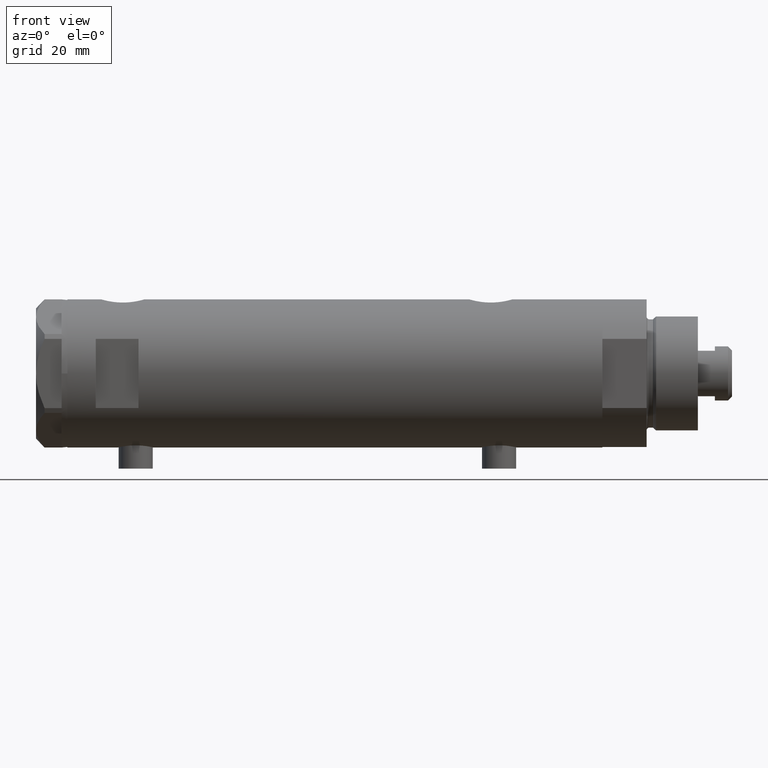
[diagram: clean part render]
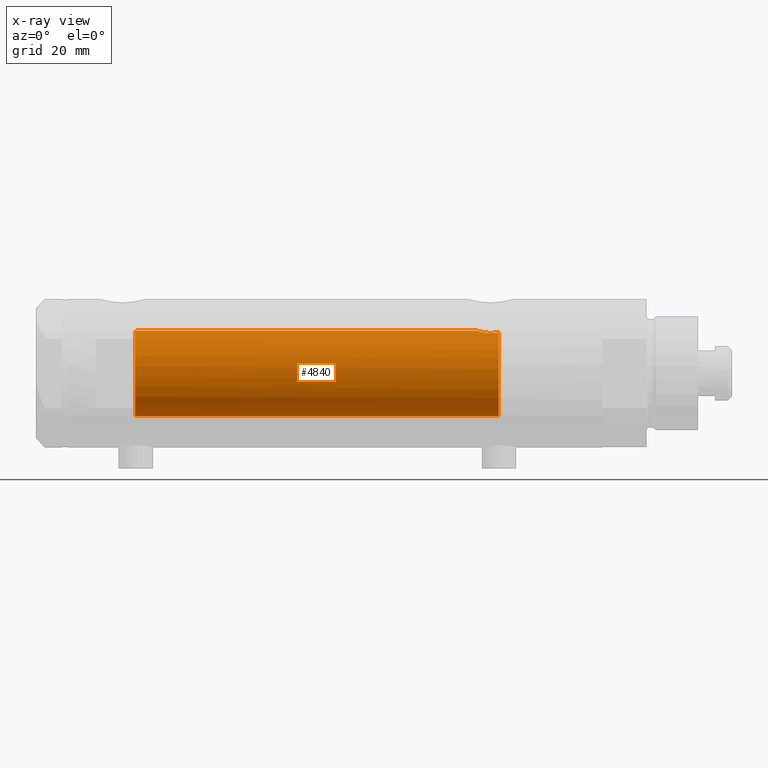
[diagram: x-ray — body ghosted, one internal face saturated and labeled with its STEP entity id]
A machine part, front view, then the same camera in x-ray: the body is ghosted and one INTERNAL B-rep face — a face not visible from any outside direction — is saturated and labeled: STEP entity #4840.
In plain terms, the highlighted cylindrical surface (partial cylindrical patch) has radius 15 mm, axis along (1, 0, -0).
Its self-contained STEP definition (entity closure, byte-faithful):
#52 = VERTEX_POINT ( 'NONE', #1242 ) ;
#87 = CARTESIAN_POINT ( 'NONE',  ( 14.85289483991917692, -2.102865829523694607, 70.05860377881609224 ) ) ;
#136 = CARTESIAN_POINT ( 'NONE',  ( 14.92029983160078643, -1.555365312915180542, 69.83609703141415537 ) ) ;
#182 = CARTESIAN_POINT ( 'NONE',  ( 14.97537530859971966, -0.8874117095427771496, -49.96137464055829014 ) ) ;
#226 = CARTESIAN_POINT ( 'NONE',  ( 14.96064712090283777, -1.106639041422191827, -50.00738179736369915 ) ) ;
#255 = CARTESIAN_POINT ( 'NONE',  ( 14.23984499268011028, -4.714778477509579346, -53.53008258614766390 ) ) ;
#339 = FACE_OUTER_BOUND ( 'NONE', #2735, .T. ) ;
#386 = DIRECTION ( 'NONE',  ( -0.000000000000000000, -0.000000000000000000, -1.000000000000000000 ) ) ;
#405 = VERTEX_POINT ( 'NONE', #2819 ) ;
#502 = EDGE_CURVE ( 'NONE', #1297, #857, #3996, .T. ) ;
#509 = CARTESIAN_POINT ( 'NONE',  ( 15.00000000000000000, 0.000000000000000000, 69.58500000000000796 ) ) ;
#556 = CARTESIAN_POINT ( 'NONE',  ( 14.81710879718117546, -2.343063746046468054, -50.48067662538952050 ) ) ;
#563 = EDGE_CURVE ( 'NONE', #405, #1461, #3531, .T. ) ;
#728 = DIRECTION ( 'NONE',  ( -0.000000000000000000, -0.000000000000000000, -1.000000000000000000 ) ) ;
#731 = LINE ( 'NONE', #759, #892 ) ;
#759 = CARTESIAN_POINT ( 'NONE',  ( -15.00000000000000000, 0.000000000000000000, 93.95000000000001705 ) ) ;
#769 = ORIENTED_EDGE ( 'NONE', *, *, #3723, .F. ) ;
#774 = CARTESIAN_POINT ( 'NONE',  ( -15.00000000000000000, 0.000000000000000000, -57.55000000000000426 ) ) ;
#857 = VERTEX_POINT ( 'NONE', #1972 ) ;
#892 = VECTOR ( 'NONE', #2154, 1000.000000000000000 ) ;
#917 = CARTESIAN_POINT ( 'NONE',  ( 14.42796883436190214, -4.108435602805831088, -52.10726922759030799 ) ) ;
#966 = CARTESIAN_POINT ( 'NONE',  ( 14.18786347641749757, -4.868757996482117711, -54.63322300400292875 ) ) ;
#994 = CARTESIAN_POINT ( 'NONE',  ( 15.00000000000000000, -0.2216692655473431750, -49.88499999999999091 ) ) ;
#1016 = CARTESIAN_POINT ( 'NONE',  ( 14.30772250772359833, -4.505024017690383076, -52.90010806953220879 ) ) ;
#1168 = DIRECTION ( 'NONE',  ( 0.000000000000000000, 0.000000000000000000, 1.000000000000000000 ) ) ;
#1242 = CARTESIAN_POINT ( 'NONE',  ( 15.00000000000000000, 5.959273468635536151E-16, -49.88499999999999801 ) ) ;
#1297 = VERTEX_POINT ( 'NONE', #2085 ) ;
#1329 = CARTESIAN_POINT ( 'NONE',  ( 14.64727859494137263, -3.248701865452407578, -51.10174013696655493 ) ) ;
#1386 = LINE ( 'NONE', #3615, #3782 ) ;
#1461 = VERTEX_POINT ( 'NONE', #774 ) ;
#1469 = DIRECTION ( 'NONE',  ( 1.000000000000000000, 0.000000000000000000, 0.000000000000000000 ) ) ;
#1476 = ORIENTED_EDGE ( 'NONE', *, *, #502, .F. ) ;
#1490 = CARTESIAN_POINT ( 'NONE',  ( 0.000000000000000000, 0.000000000000000000, 70.15000000000000568 ) ) ;
#1517 = CIRCLE ( 'NONE', #2994, 15.00000000000000000 ) ;
#1580 = CARTESIAN_POINT ( 'NONE',  ( 0.000000000000000000, 0.000000000000000000, -57.55000000000000426 ) ) ;
#1670 = CARTESIAN_POINT ( 'NONE',  ( 14.99508877558421993, -0.4434836953032583184, -49.90007684727662252 ) ) ;
#1739 = CARTESIAN_POINT ( 'NONE',  ( 14.42775250319760083, -4.105775281508734054, -57.36911445102909113 ) ) ;
#1765 = CARTESIAN_POINT ( 'NONE',  ( 14.20819413761015504, -4.809312895991456394, -55.51713251522167525 ) ) ;
#1821 = CARTESIAN_POINT ( 'NONE',  ( 0.000000000000000000, 0.000000000000000000, 93.95000000000001705 ) ) ;
#1835 = EDGE_CURVE ( 'NONE', #1297, #52, #1386, .T. ) ;
#1940 = CARTESIAN_POINT ( 'NONE',  ( 14.82638779339053947, -2.275571356824482638, 70.15000000000000568 ) ) ;
#1972 = CARTESIAN_POINT ( 'NONE',  ( 14.82638779339053947, -2.275571356824482638, 70.15000000000000568 ) ) ;
#2085 = CARTESIAN_POINT ( 'NONE',  ( 15.00000000000000000, 0.000000000000000000, 69.58500000000000796 ) ) ;
#2094 = CARTESIAN_POINT ( 'NONE',  ( 14.46277203719950855, -3.978470183374506863, -57.55000000000000426 ) ) ;
#2126 = CARTESIAN_POINT ( 'NONE',  ( 14.84733308118440220, -2.144376633039216440, -50.37751912952715116 ) ) ;
#2147 = ORIENTED_EDGE ( 'NONE', *, *, #563, .T. ) ;
#2154 = DIRECTION ( 'NONE',  ( -0.000000000000000000, -0.000000000000000000, -1.000000000000000000 ) ) ;
#2278 = CARTESIAN_POINT ( 'NONE',  ( 15.00000000000000178, -0.3999014018875933218, 69.58499999999999375 ) ) ;
#2401 = CARTESIAN_POINT ( 'NONE',  ( 14.72015646623405871, -2.909233045280601893, -50.82572079632731743 ) ) ;
#2417 = B_SPLINE_CURVE_WITH_KNOTS ( 'NONE', 3,
 ( #2094, #1739, #4762, #3912, #2845, #4790, #4305, #1765, #2867, #3214, #966, #4360, #4709, #255, #2772, #1016, #4328, #917, #2496, #1329, #2401, #556, #2126, #3592, #3266, #226, #182, #1670, #994, #3173 ),
 .UNSPECIFIED., .F., .F.,
 ( 4, 2, 2, 2, 2, 2, 2, 2, 2, 2, 2, 2, 2, 2, 4 ),
 ( 0.004672505804584289359, 0.005337629501999303222, 0.006002753199414317953, 0.006667876896829330949, 0.007333000594244345680, 0.007998124291659358676, 0.008663247989074373406, 0.009328371686489388137, 0.009993495383904402868, 0.01132374277873441151, 0.01265399017356442016, 0.01331911387097942448, 0.01398423756839442880, 0.01464936126580943312, 0.01531448496322443745 ),
 .UNSPECIFIED. ) ;
#2457 = ORIENTED_EDGE ( 'NONE', *, *, #2646, .T. ) ;
#2496 = CARTESIAN_POINT ( 'NONE',  ( 14.49994286062941562, -3.853373987417223479, -51.74743896782911889 ) ) ;
#2617 = AXIS2_PLACEMENT_3D ( 'NONE', #1821, #386, #3292 ) ;
#2646 = EDGE_CURVE ( 'NONE', #4057, #857, #1517, .T. ) ;
#2698 = CARTESIAN_POINT ( 'NONE',  ( 14.98404828787190901, -0.7909490205761857684, 69.63356230794191504 ) ) ;
#2735 = EDGE_LOOP ( 'NONE', ( #1476, #3457, #769, #2147, #3759, #2457 ) ) ;
#2772 = CARTESIAN_POINT ( 'NONE',  ( 14.25977760983849052, -4.654557688538888627, -53.31736805897653397 ) ) ;
#2819 = CARTESIAN_POINT ( 'NONE',  ( 14.46277203719950855, -3.978470183374506863, -57.55000000000000426 ) ) ;
#2845 = CARTESIAN_POINT ( 'NONE',  ( 14.30602371879161439, -4.510400617436904014, -56.58665028800271557 ) ) ;
#2867 = CARTESIAN_POINT ( 'NONE',  ( 14.19797987272029438, -4.839174951492910104, -55.29741451501411831 ) ) ;
#2994 = AXIS2_PLACEMENT_3D ( 'NONE', #1490, #1168, #1469 ) ;
#3072 = DIRECTION ( 'NONE',  ( -1.000000000000000000, 0.000000000000000000, 0.000000000000000000 ) ) ;
#3173 = CARTESIAN_POINT ( 'NONE',  ( 15.00000000000000000, 5.959273468635536151E-16, -49.88499999999999801 ) ) ;
#3214 = CARTESIAN_POINT ( 'NONE',  ( 14.18781489734108270, -4.868896704194245473, -54.85545969036063241 ) ) ;
#3266 = CARTESIAN_POINT ( 'NONE',  ( 14.92307637240703677, -1.532123959568890026, -50.12726557582075770 ) ) ;
#3292 = DIRECTION ( 'NONE',  ( -1.000000000000000000, 0.000000000000000000, 0.000000000000000000 ) ) ;
#3395 = DIRECTION ( 'NONE',  ( 0.000000000000000000, 0.000000000000000000, -1.000000000000000000 ) ) ;
#3457 = ORIENTED_EDGE ( 'NONE', *, *, #1835, .T. ) ;
#3531 = CIRCLE ( 'NONE', #4404, 15.00000000000000000 ) ;
#3592 = CARTESIAN_POINT ( 'NONE',  ( 14.90017778876744892, -1.739641523727902372, -50.20130925695124802 ) ) ;
#3615 = CARTESIAN_POINT ( 'NONE',  ( 15.00000000000000000, 1.836970198721029589E-15, 93.95000000000001705 ) ) ;
#3723 = EDGE_CURVE ( 'NONE', #405, #52, #2417, .T. ) ;
#3759 = ORIENTED_EDGE ( 'NONE', *, *, #3830, .F. ) ;
#3782 = VECTOR ( 'NONE', #728, 1000.000000000000000 ) ;
#3830 = EDGE_CURVE ( 'NONE', #4057, #1461, #731, .T. ) ;
#3906 = CARTESIAN_POINT ( 'NONE',  ( -15.00000000000000000, 0.000000000000000000, 70.15000000000000568 ) ) ;
#3912 = CARTESIAN_POINT ( 'NONE',  ( 14.33349657381506681, -4.422893686125041413, -56.78827841538883803 ) ) ;
#3996 = B_SPLINE_CURVE_WITH_KNOTS ( 'NONE', 3,
 ( #509, #2278, #2698, #4559, #136, #4190, #87, #1940 ),
 .UNSPECIFIED., .F., .F.,
 ( 4, 2, 2, 4 ),
 ( 0.000000000000000000, 0.001182100180564259889, 0.001773150270846394604, 0.002364200361128529319 ),
 .UNSPECIFIED. ) ;
#4057 = VERTEX_POINT ( 'NONE', #3906 ) ;
#4190 = CARTESIAN_POINT ( 'NONE',  ( 14.87720562886504183, -1.924385875533404233, 69.97741675737690059 ) ) ;
#4305 = CARTESIAN_POINT ( 'NONE',  ( 14.23846660849503465, -4.718934182878722794, -55.95401121469808459 ) ) ;
#4328 = CARTESIAN_POINT ( 'NONE',  ( 14.33594561531104006, -4.414979644548145288, -52.69453393419243525 ) ) ;
#4360 = CARTESIAN_POINT ( 'NONE',  ( 14.19858338301463441, -4.837406781463696070, -54.18614104090499239 ) ) ;
#4404 = AXIS2_PLACEMENT_3D ( 'NONE', #1580, #3395, #3072 ) ;
#4559 = CARTESIAN_POINT ( 'NONE',  ( 14.93900636919599556, -1.364886281976674942, 69.77622504971313333 ) ) ;
#4709 = CARTESIAN_POINT ( 'NONE',  ( 14.20926245015526135, -4.806160851464706063, -53.96377327795616452 ) ) ;
#4762 = CARTESIAN_POINT ( 'NONE',  ( 14.39424372609267877, -4.221002267729138779, -57.17893131093290293 ) ) ;
#4790 = CARTESIAN_POINT ( 'NONE',  ( 14.25856516724843992, -4.658255869285516937, -56.17044016644937443 ) ) ;
#4840 = ADVANCED_FACE ( 'NONE', ( #339 ), #4848, .F. ) ;
#4848 = CYLINDRICAL_SURFACE ( 'NONE', #2617, 15.00000000000000000 ) ;